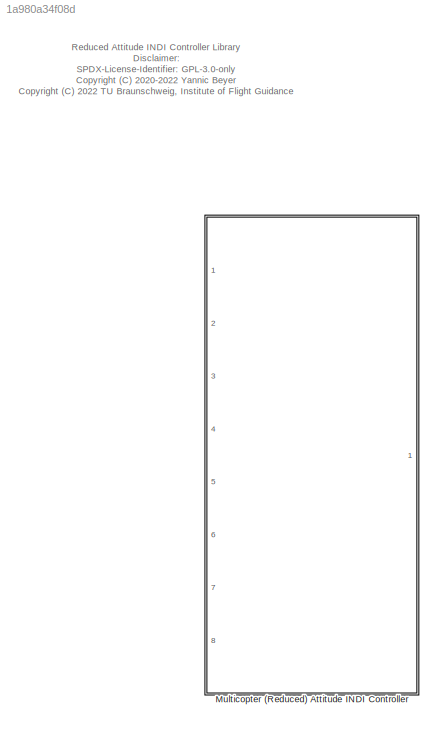
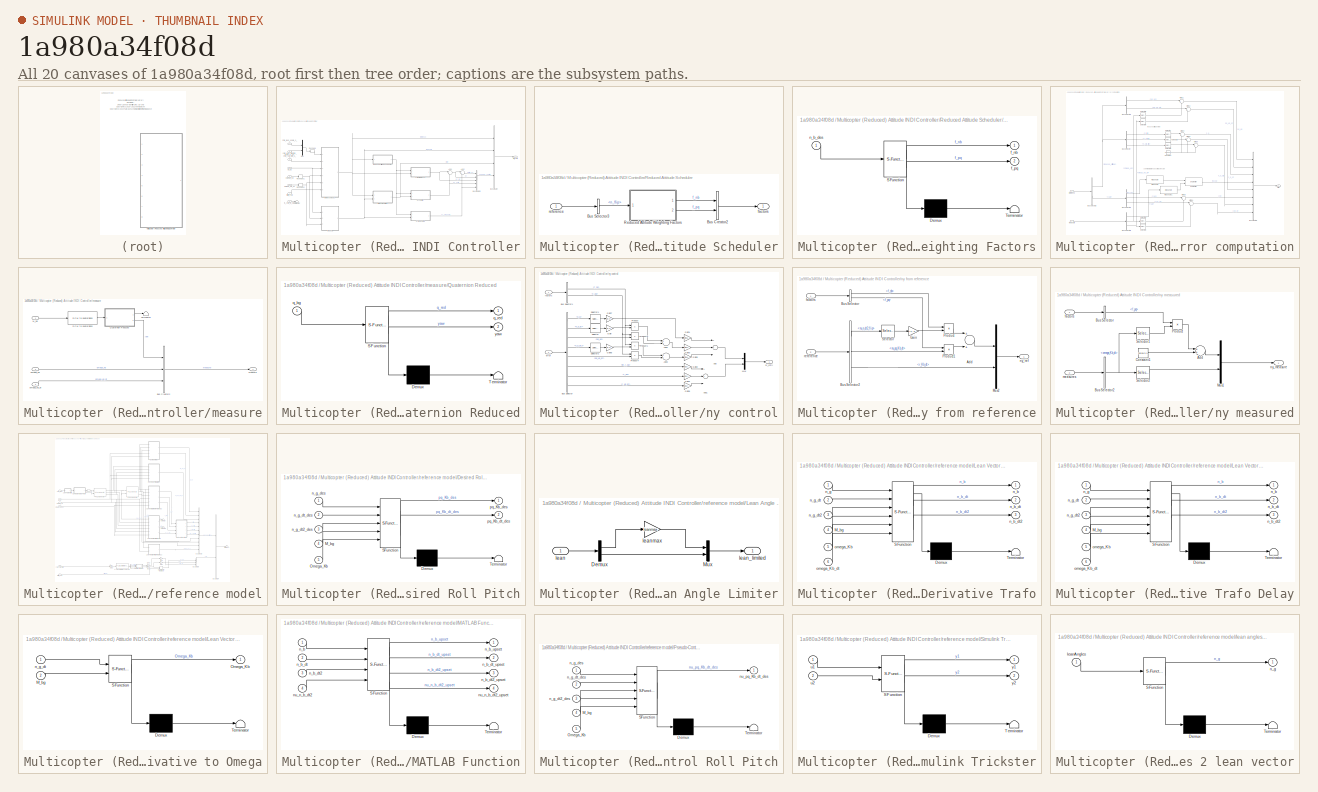
[diagram: thumbnail index - all 20 canvases of the model, root first then tree order]
MODEL slx_1a980a34f08d
KIND library
CONFIG AbsTol = auto
CONFIG EnableMultiTasking = off
CONFIG FixedStep = auto
CONFIG MaxStep = auto
CONFIG MinStep = auto
CONFIG RelTol = 1e-3
CONFIG SampleTimeConstraint = Unconstrained
CONFIG Solver = VariableStepAuto
CONFIG SolverName = VariableStepAuto
CONFIG StartTime = 0.0
CONFIG StopTime = 10.0
BLOCK [SubSystem] Multicopter (Reduced) Attitude INDI Controller
  Ports = [8, 1]
  RequestExecContextInheritance = off
BLOCK [Sum] Multicopter (Reduced) Attitude INDI Controller/Add1
  IconShape = round
  InputSameDT = off
  Inputs = |++
  OutDataTypeStr = Inherit: Inherit via internal rule
  Ports = [2, 1]
  SaturateOnIntegerOverflow = off
BLOCK [Sum] Multicopter (Reduced) Attitude INDI Controller/Add2
  IconShape = round
  InputSameDT = off
  Inputs = |+-
  OutDataTypeStr = Inherit: Inherit via internal rule
  Ports = [2, 1]
  SaturateOnIntegerOverflow = off
BLOCK [BusCreator] Multicopter (Reduced) Attitude INDI Controller/Bus Creator
  DisplayOption = bar
  InheritFromInputs = on
  Inputs = 4
  Ports = [4, 1]
BLOCK [BusCreator] Multicopter (Reduced) Attitude INDI Controller/Bus Creator1
  DisplayOption = bar
  InheritFromInputs = on
  Inputs = 5
  Ports = [5, 1]
BLOCK [Inport] Multicopter (Reduced) Attitude INDI Controller/M_bg
  IconDisplay = Port number
  Port = 4
BLOCK [Mux] Multicopter (Reduced) Attitude INDI Controller/Mux
  DisplayOption = bar
  Inputs = 2
  Ports = [2, 1]
BLOCK [SubSystem] Multicopter (Reduced) Attitude INDI Controller/Reduced Attitude Scheduler
  Ports = [1, 1]
  RequestExecContextInheritance = off
BLOCK [BusCreator] Multicopter (Reduced) Attitude INDI Controller/Reduced Attitude Scheduler/Bus Creator2
  DisplayOption = bar
  InheritFromInputs = on
  Inputs = 2
  Ports = [2, 1]
BLOCK [BusSelector] Multicopter (Reduced) Attitude INDI Controller/Reduced Attitude Scheduler/Bus Selector3
  OutputAsBus = off
  OutputSignals = reduced_attitude.n_flip
  Ports = [1, 1]
BLOCK [SubSystem] Multicopter (Reduced) Attitude INDI Controller/Reduced Attitude Scheduler/Reduced Attitude Weighting Factors
  ErrorFcn = Stateflow.Translate.translate
  PermitHierarchicalResolution = ExplicitOnly
  Ports = [1, 2]
  RequestExecContextInheritance = off
  SFBlockType = MATLAB Function
  TreatAsAtomicUnit = on
BLOCK [Demux] Multicopter (Reduced) Attitude INDI Controller/Reduced Attitude Scheduler/Reduced Attitude Weighting Factors/ Demux 
  Outputs = 1
  Ports = [1, 1]
BLOCK [S-Function] Multicopter (Reduced) Attitude INDI Controller/Reduced Attitude Scheduler/Reduced Attitude Weighting Factors/ SFunction 
  EnableBusSupport = off
  FunctionName = sf_sfun
  PortCounts = [1 3]
  Ports = [1, 3]
  SFcnIsStateOwnerBlock = off
  SFunctionDeploymentMode = off
  Tag = Stateflow S-Function cntrlAttiRedIndi_lib 8
BLOCK [Terminator] Multicopter (Reduced) Attitude INDI Controller/Reduced Attitude Scheduler/Reduced Attitude Weighting Factors/ Terminator 
BLOCK [Outport] Multicopter (Reduced) Attitude INDI Controller/Reduced Attitude Scheduler/Reduced Attitude Weighting Factors/f_nb
  IconDisplay = Port number
BLOCK [Outport] Multicopter (Reduced) Attitude INDI Controller/Reduced Attitude Scheduler/Reduced Attitude Weighting Factors/f_pq
  IconDisplay = Port number
  Port = 2
BLOCK [Inport] Multicopter (Reduced) Attitude INDI Controller/Reduced Attitude Scheduler/Reduced Attitude Weighting Factors/n_b_des
  IconDisplay = Port number
BLOCK [Outport] Multicopter (Reduced) Attitude INDI Controller/Reduced Attitude Scheduler/factors
  IconDisplay = Port number
BLOCK [Inport] Multicopter (Reduced) Attitude INDI Controller/Reduced Attitude Scheduler/reference
  IconDisplay = Port number
BLOCK [Reshape] Multicopter (Reduced) Attitude INDI Controller/Reshape
  OutputDimensionality = Column vector (2-D)
  Ports = [1, 1]
BLOCK [Reshape] Multicopter (Reduced) Attitude INDI Controller/Reshape1
  OutputDimensionality = Column vector (2-D)
  Ports = [1, 1]
BLOCK [Reshape] Multicopter (Reduced) Attitude INDI Controller/Reshape2
  OutputDimensionality = Column vector (2-D)
  Ports = [1, 1]
BLOCK [Terminator] Multicopter (Reduced) Attitude INDI Controller/Terminator
BLOCK [Outport] Multicopter (Reduced) Attitude INDI Controller/atti_cntrl
  IconDisplay = Port number
BLOCK [Inport] Multicopter (Reduced) Attitude INDI Controller/cmd_lean_angle_0_1
  IconDisplay = Port number
BLOCK [Inport] Multicopter (Reduced) Attitude INDI Controller/cmd_lean_direction_angle_0_2pi
  IconDisplay = Port number
  Port = 2
BLOCK [Inport] Multicopter (Reduced) Attitude INDI Controller/cmd_yaw_rate_-1_1
  IconDisplay = Port number
  Port = 3
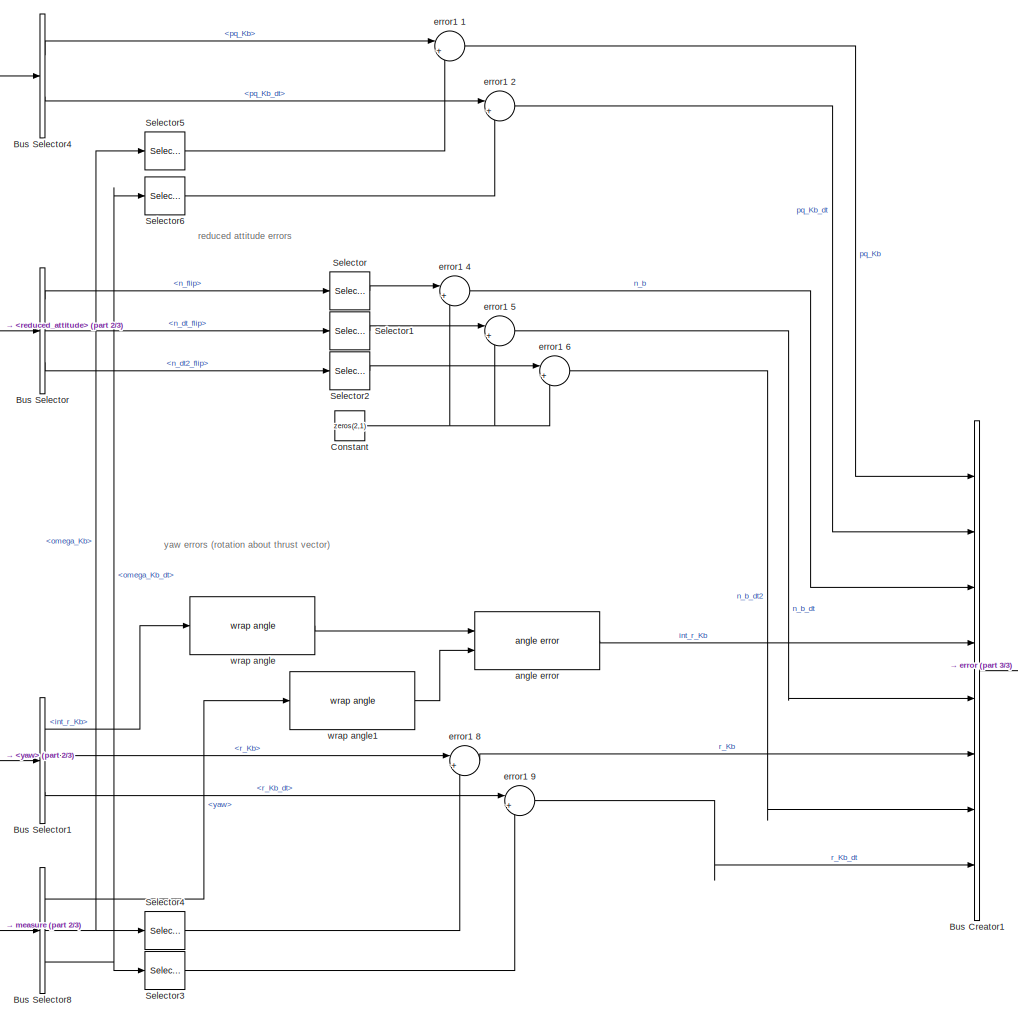
[diagram: Multicopter (Reduced) Attitude INDI Controller/error computation - part 1/3, center side, full height]
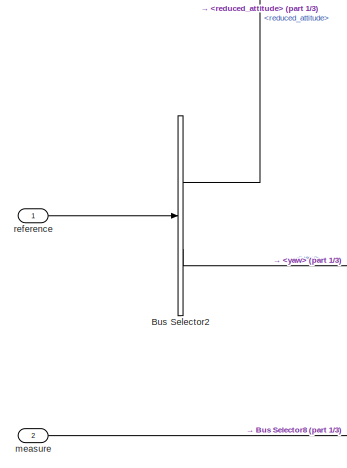
[diagram: Multicopter (Reduced) Attitude INDI Controller/error computation - part 2/3, bottom left region]
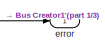
[diagram: Multicopter (Reduced) Attitude INDI Controller/error computation - part 3/3, middle right region]
BLOCK [SubSystem] Multicopter (Reduced) Attitude INDI Controller/error computation
  Ports = [2, 1]
  RequestExecContextInheritance = off
BLOCK [BusCreator] Multicopter (Reduced) Attitude INDI Controller/error computation/Bus Creator1
  DisplayOption = bar
  InheritFromInputs = on
  Inputs = 8
  Ports = [8, 1]
BLOCK [BusSelector] Multicopter (Reduced) Attitude INDI Controller/error computation/Bus Selector
  OutputAsBus = off
  OutputSignals = n_flip,n_dt_flip,n_dt2_flip
  Ports = [1, 3]
BLOCK [BusSelector] Multicopter (Reduced) Attitude INDI Controller/error computation/Bus Selector1
  OutputAsBus = off
  OutputSignals = int_r_Kb,r_Kb,r_Kb_dt
  Ports = [1, 3]
BLOCK [BusSelector] Multicopter (Reduced) Attitude INDI Controller/error computation/Bus Selector2
  OutputAsBus = off
  OutputSignals = reduced_attitude,yaw
  Ports = [1, 2]
BLOCK [BusSelector] Multicopter (Reduced) Attitude INDI Controller/error computation/Bus Selector4
  OutputAsBus = off
  OutputSignals = pq_Kb,pq_Kb_dt
  Ports = [1, 2]
BLOCK [BusSelector] Multicopter (Reduced) Attitude INDI Controller/error computation/Bus Selector8
  OutputAsBus = off
  OutputSignals = yaw,omega_Kb,omega_Kb_dt
  Ports = [1, 3]
BLOCK [Constant] Multicopter (Reduced) Attitude INDI Controller/error computation/Constant
  Value = zeros(2,1)
BLOCK [Selector] Multicopter (Reduced) Attitude INDI Controller/error computation/Selector
  IndexOptions = Index vector (dialog)
  Indices = [1,2]
  InputPortWidth = 3
  OutputSizes = 1
  Ports = [1, 1]
BLOCK [Selector] Multicopter (Reduced) Attitude INDI Controller/error computation/Selector1
  IndexOptions = Index vector (dialog)
  Indices = [1,2]
  InputPortWidth = 3
  OutputSizes = 1
  Ports = [1, 1]
BLOCK [Selector] Multicopter (Reduced) Attitude INDI Controller/error computation/Selector2
  IndexOptions = Index vector (dialog)
  Indices = [1,2]
  InputPortWidth = 3
  OutputSizes = 1
  Ports = [1, 1]
BLOCK [Selector] Multicopter (Reduced) Attitude INDI Controller/error computation/Selector3
  IndexOptions = Index vector (dialog)
  Indices = 3
  InputPortWidth = 3
  OutputSizes = 1
  Ports = [1, 1]
BLOCK [Selector] Multicopter (Reduced) Attitude INDI Controller/error computation/Selector4
  IndexOptions = Index vector (dialog)
  Indices = 3
  InputPortWidth = 3
  OutputSizes = 1
  Ports = [1, 1]
BLOCK [Selector] Multicopter (Reduced) Attitude INDI Controller/error computation/Selector5
  IndexOptions = Index vector (dialog)
  Indices = 1:2
  InputPortWidth = 3
  OutputSizes = 1
  Ports = [1, 1]
BLOCK [Selector] Multicopter (Reduced) Attitude INDI Controller/error computation/Selector6
  IndexOptions = Index vector (dialog)
  Indices = 1:2
  InputPortWidth = 3
  OutputSizes = 1
  Ports = [1, 1]
BLOCK [Reference] Multicopter (Reduced) Attitude INDI Controller/error computation/angle error  REF=angles_lib/angle error  (lib defined in slx_87bf087a0d78)
  Ports = [2, 1]
  SourceBlock = angles_lib/angle error
  SourceProductName = LADAC
  SourceType = SubSystem
BLOCK [Outport] Multicopter (Reduced) Attitude INDI Controller/error computation/error
  IconDisplay = Port number
BLOCK [Sum] Multicopter (Reduced) Attitude INDI Controller/error computation/error1 1
  IconShape = round
  InputSameDT = off
  Inputs = |+-
  OutDataTypeStr = Inherit: Inherit via internal rule
  Ports = [2, 1]
  SaturateOnIntegerOverflow = off
BLOCK [Sum] Multicopter (Reduced) Attitude INDI Controller/error computation/error1 2
  IconShape = round
  InputSameDT = off
  Inputs = |+-
  OutDataTypeStr = Inherit: Inherit via internal rule
  Ports = [2, 1]
  SaturateOnIntegerOverflow = off
BLOCK [Sum] Multicopter (Reduced) Attitude INDI Controller/error computation/error1 4
  IconShape = round
  InputSameDT = off
  Inputs = |+-
  OutDataTypeStr = Inherit: Inherit via internal rule
  Ports = [2, 1]
  SaturateOnIntegerOverflow = off
BLOCK [Sum] Multicopter (Reduced) Attitude INDI Controller/error computation/error1 5
  IconShape = round
  InputSameDT = off
  Inputs = |+-
  OutDataTypeStr = Inherit: Inherit via internal rule
  Ports = [2, 1]
  SaturateOnIntegerOverflow = off
BLOCK [Sum] Multicopter (Reduced) Attitude INDI Controller/error computation/error1 6
  IconShape = round
  InputSameDT = off
  Inputs = |+-
  OutDataTypeStr = Inherit: Inherit via internal rule
  Ports = [2, 1]
  SaturateOnIntegerOverflow = off
BLOCK [Sum] Multicopter (Reduced) Attitude INDI Controller/error computation/error1 8
  IconShape = round
  InputSameDT = off
  Inputs = |+-
  OutDataTypeStr = Inherit: Inherit via internal rule
  Ports = [2, 1]
  SaturateOnIntegerOverflow = off
BLOCK [Sum] Multicopter (Reduced) Attitude INDI Controller/error computation/error1 9
  IconShape = round
  InputSameDT = off
  Inputs = |+-
  OutDataTypeStr = Inherit: Inherit via internal rule
  Ports = [2, 1]
  SaturateOnIntegerOverflow = off
BLOCK [Inport] Multicopter (Reduced) Attitude INDI Controller/error computation/measure
  IconDisplay = Port number
  Port = 2
BLOCK [Inport] Multicopter (Reduced) Attitude INDI Controller/error computation/reference
  IconDisplay = Port number
BLOCK [Reference] Multicopter (Reduced) Attitude INDI Controller/error computation/wrap angle  REF=angles_lib/wrap angle  (lib defined in slx_87bf087a0d78)
  Ports = [1, 1]
  SourceBlock = angles_lib/wrap angle
  SourceProductName = LADAC
  SourceType = SubSystem
BLOCK [Reference] Multicopter (Reduced) Attitude INDI Controller/error computation/wrap angle1  REF=angles_lib/wrap angle  (lib defined in slx_87bf087a0d78)
  Ports = [1, 1]
  SourceBlock = angles_lib/wrap angle
  SourceProductName = LADAC
  SourceType = SubSystem
BLOCK [Inport] Multicopter (Reduced) Attitude INDI Controller/initial_yaw
  IconDisplay = Port number
  Port = 7
BLOCK [Inport] Multicopter (Reduced) Attitude INDI Controller/is_cmd_in_NED
  IconDisplay = Port number
  Port = 8
BLOCK [SubSystem] Multicopter (Reduced) Attitude INDI Controller/measure
  Ports = [3, 1]
  RequestExecContextInheritance = off
BLOCK [BusCreator] Multicopter (Reduced) Attitude INDI Controller/measure/Bus Creator2
  DisplayOption = bar
  InheritFromInputs = on
  Inputs = 3
  Ports = [3, 1]
BLOCK [Reference] Multicopter (Reduced) Attitude INDI Controller/measure/DCM to quaternions  REF=axes_transformation_lib/DCM to quaternions  (lib defined in slx_69e2413c78c0)
  Ports = [1, 1]
  SourceBlock = axes_transformation_lib/DCM to quaternions
  SourceProductName = LADAC
  SourceType = SubSystem
BLOCK [Inport] Multicopter (Reduced) Attitude INDI Controller/measure/M_bg
  IconDisplay = Port number
BLOCK [SubSystem] Multicopter (Reduced) Attitude INDI Controller/measure/Quaternion Reduced
  ErrorFcn = Stateflow.Translate.translate
  PermitHierarchicalResolution = ExplicitOnly
  Ports = [1, 2]
  RequestExecContextInheritance = off
  SFBlockType = MATLAB Function
  TreatAsAtomicUnit = on
BLOCK [Demux] Multicopter (Reduced) Attitude INDI Controller/measure/Quaternion Reduced/ Demux 
  Outputs = 1
  Ports = [1, 1]
BLOCK [S-Function] Multicopter (Reduced) Attitude INDI Controller/measure/Quaternion Reduced/ SFunction 
  EnableBusSupport = off
  FunctionName = sf_sfun
  PortCounts = [1 3]
  Ports = [1, 3]
  SFcnIsStateOwnerBlock = off
  SFunctionDeploymentMode = off
  Tag = Stateflow S-Function cntrlAttiRedIndi_lib 32
BLOCK [Terminator] Multicopter (Reduced) Attitude INDI Controller/measure/Quaternion Reduced/ Terminator 
BLOCK [Inport] Multicopter (Reduced) Attitude INDI Controller/measure/Quaternion Reduced/q_bg
  IconDisplay = Port number
BLOCK [Outport] Multicopter (Reduced) Attitude INDI Controller/measure/Quaternion Reduced/q_red
  IconDisplay = Port number
BLOCK [Outport] Multicopter (Reduced) Attitude INDI Controller/measure/Quaternion Reduced/yaw
  IconDisplay = Port number
  Port = 2
BLOCK [Terminator] Multicopter (Reduced) Attitude INDI Controller/measure/Terminator
BLOCK [Outport] Multicopter (Reduced) Attitude INDI Controller/measure/measure
  IconDisplay = Port number
BLOCK [Inport] Multicopter (Reduced) Attitude INDI Controller/measure/omega_Kb
  IconDisplay = Port number
  Port = 2
BLOCK [Inport] Multicopter (Reduced) Attitude INDI Controller/measure/omega_Kb_dt
  IconDisplay = Port number
  Port = 3
BLOCK [SubSystem] Multicopter (Reduced) Attitude INDI Controller/ny control
  Ports = [2, 1]
  RequestExecContextInheritance = off
BLOCK [Sum] Multicopter (Reduced) Attitude INDI Controller/ny control/Add
  InputSameDT = off
  Inputs = 3
  OutDataTypeStr = Inherit: Inherit via internal rule
  Ports = [3, 1]
  SaturateOnIntegerOverflow = off
BLOCK [Sum] Multicopter (Reduced) Attitude INDI Controller/ny control/Add1
  InputSameDT = off
  Inputs = 3
  OutDataTypeStr = Inherit: Inherit via internal rule
  Ports = [3, 1]
  SaturateOnIntegerOverflow = off
BLOCK [Sum] Multicopter (Reduced) Attitude INDI Controller/ny control/Add2
  InputSameDT = off
  OutDataTypeStr = Inherit: Inherit via internal rule
  Ports = [2, 1]
  SaturateOnIntegerOverflow = off
BLOCK [Sum] Multicopter (Reduced) Attitude INDI Controller/ny control/Add3
  InputSameDT = off
  OutDataTypeStr = Inherit: Inherit via internal rule
  Ports = [2, 1]
  SaturateOnIntegerOverflow = off
BLOCK [BusSelector] Multicopter (Reduced) Attitude INDI Controller/ny control/Bus Selector
  OutputAsBus = off
  OutputSignals = n_b,n_b_dt,pq_Kb,n_b_dt2,pq_Kb_dt,int_r_Kb,r_Kb,r_Kb_dt
  Ports = [1, 8]
BLOCK [BusSelector] Multicopter (Reduced) Attitude INDI Controller/ny control/Bus Selector1
  OutputAsBus = off
  OutputSignals = f_nb,f_pq
  Ports = [1, 2]
BLOCK [Gain] Multicopter (Reduced) Attitude INDI Controller/ny control/Gain
  Gain = [1;-1]
  OutDataTypeStr = Inherit: Inherit via internal rule
  ParamDataTypeStr = Inherit: Inherit via internal rule
  SaturateOnIntegerOverflow = off
BLOCK [Gain] Multicopter (Reduced) Attitude INDI Controller/ny control/Gain1
  Gain = atc.k.lean
  OutDataTypeStr = Inherit: Inherit via internal rule
  ParamDataTypeStr = Inherit: Inherit via internal rule
  SaturateOnIntegerOverflow = off
BLOCK [Gain] Multicopter (Reduced) Attitude INDI Controller/ny control/Gain2
  Gain = atc.k.yaw
  OutDataTypeStr = Inherit: Inherit via internal rule
  ParamDataTypeStr = Inherit: Inherit via internal rule
  SaturateOnIntegerOverflow = off
BLOCK [Gain] Multicopter (Reduced) Attitude INDI Controller/ny control/Gain3
  Gain = atc.k.leanrate
  OutDataTypeStr = Inherit: Inherit via internal rule
  ParamDataTypeStr = Inherit: Inherit via internal rule
  SaturateOnIntegerOverflow = off
BLOCK [Gain] Multicopter (Reduced) Attitude INDI Controller/ny control/Gain4
  Gain = atc.k.yawrate
  OutDataTypeStr = Inherit: Inherit via internal rule
  ParamDataTypeStr = Inherit: Inherit via internal rule
  SaturateOnIntegerOverflow = off
BLOCK [Gain] Multicopter (Reduced) Attitude INDI Controller/ny control/Gain5
  Gain = atc.k.leanacc
  OutDataTypeStr = Inherit: Inherit via internal rule
  ParamDataTypeStr = Inherit: Inherit via internal rule
  SaturateOnIntegerOverflow = off
BLOCK [Gain] Multicopter (Reduced) Attitude INDI Controller/ny control/Gain6
  Gain = atc.k.yawacc
  OutDataTypeStr = Inherit: Inherit via internal rule
  ParamDataTypeStr = Inherit: Inherit via internal rule
  SaturateOnIntegerOverflow = off
BLOCK [Gain] Multicopter (Reduced) Attitude INDI Controller/ny control/Gain7
  Gain = [1;-1]
  OutDataTypeStr = Inherit: Inherit via internal rule
  ParamDataTypeStr = Inherit: Inherit via internal rule
  SaturateOnIntegerOverflow = off
BLOCK [Gain] Multicopter (Reduced) Attitude INDI Controller/ny control/Gain8
  Gain = [1;-1]
  OutDataTypeStr = Inherit: Inherit via internal rule
  ParamDataTypeStr = Inherit: Inherit via internal rule
  SaturateOnIntegerOverflow = off
BLOCK [Mux] Multicopter (Reduced) Attitude INDI Controller/ny control/Mux
  DisplayOption = bar
  Inputs = 2
  Ports = [2, 1]
BLOCK [Product] Multicopter (Reduced) Attitude INDI Controller/ny control/Product
  InputSameDT = off
  OutDataTypeStr = Inherit: Inherit via internal rule
  Ports = [2, 1]
  RndMeth = Floor
  SaturateOnIntegerOverflow = off
BLOCK [Product] Multicopter (Reduced) Attitude INDI Controller/ny control/Product1
  InputSameDT = off
  OutDataTypeStr = Inherit: Inherit via internal rule
  Ports = [2, 1]
  RndMeth = Floor
  SaturateOnIntegerOverflow = off
BLOCK [Product] Multicopter (Reduced) Attitude INDI Controller/ny control/Product3
  InputSameDT = off
  OutDataTypeStr = Inherit: Inherit via internal rule
  Ports = [2, 1]
  RndMeth = Floor
  SaturateOnIntegerOverflow = off
BLOCK [Product] Multicopter (Reduced) Attitude INDI Controller/ny control/Product4
  InputSameDT = off
  OutDataTypeStr = Inherit: Inherit via internal rule
  Ports = [2, 1]
  RndMeth = Floor
  SaturateOnIntegerOverflow = off
BLOCK [Selector] Multicopter (Reduced) Attitude INDI Controller/ny control/Selector
  IndexOptions = Index vector (dialog)
  Indices = [2,1]
  InputPortWidth = 2
  OutputSizes = 1
  Ports = [1, 1]
BLOCK [Selector] Multicopter (Reduced) Attitude INDI Controller/ny control/Selector1
  IndexOptions = Index vector (dialog)
  Indices = [2,1]
  InputPortWidth = 2
  OutputSizes = 1
  Ports = [1, 1]
BLOCK [Selector] Multicopter (Reduced) Attitude INDI Controller/ny control/Selector2
  IndexOptions = Index vector (dialog)
  Indices = [2,1]
  InputPortWidth = 2
  OutputSizes = 1
  Ports = [1, 1]
BLOCK [Inport] Multicopter (Reduced) Attitude INDI Controller/ny control/error
  IconDisplay = Port number
  Port = 2
BLOCK [Inport] Multicopter (Reduced) Attitude INDI Controller/ny control/factors
  IconDisplay = Port number
BLOCK [Outport] Multicopter (Reduced) Attitude INDI Controller/ny control/ny_cntrl
  IconDisplay = Port number
BLOCK [SubSystem] Multicopter (Reduced) Attitude INDI Controller/ny from reference
  Ports = [2, 1]
  RequestExecContextInheritance = off
BLOCK [Sum] Multicopter (Reduced) Attitude INDI Controller/ny from reference/Add
  InputSameDT = off
  OutDataTypeStr = Inherit: Inherit via internal rule
  Ports = [2, 1]
  SaturateOnIntegerOverflow = off
BLOCK [BusSelector] Multicopter (Reduced) Attitude INDI Controller/ny from reference/Bus Selector
  OutputAsBus = off
  OutputSignals = f_nb,f_pq
  Ports = [1, 2]
BLOCK [BusSelector] Multicopter (Reduced) Attitude INDI Controller/ny from reference/Bus Selector2
  OutputAsBus = off
  OutputSignals = reduced_attitude.nu_n_dt2_flip,reduced_attitude.nu_pq_Kb_dt,yaw.r_Kb_dt
  Ports = [1, 3]
BLOCK [Gain] Multicopter (Reduced) Attitude INDI Controller/ny from reference/Gain
  Gain = [1;-1]
  OutDataTypeStr = Inherit: Inherit via internal rule
  ParamDataTypeStr = Inherit: Inherit via internal rule
  SaturateOnIntegerOverflow = off
BLOCK [Mux] Multicopter (Reduced) Attitude INDI Controller/ny from reference/Mux2
  DisplayOption = bar
  Inputs = 2
  Ports = [2, 1]
BLOCK [Product] Multicopter (Reduced) Attitude INDI Controller/ny from reference/Product
  InputSameDT = off
  OutDataTypeStr = Inherit: Inherit via internal rule
  Ports = [2, 1]
  RndMeth = Floor
  SaturateOnIntegerOverflow = off
BLOCK [Product] Multicopter (Reduced) Attitude INDI Controller/ny from reference/Product1
  InputSameDT = off
  OutDataTypeStr = Inherit: Inherit via internal rule
  Ports = [2, 1]
  RndMeth = Floor
  SaturateOnIntegerOverflow = off
BLOCK [Selector] Multicopter (Reduced) Attitude INDI Controller/ny from reference/Selector
  IndexOptions = Index vector (dialog)
  Indices = [2,1]
  InputPortWidth = 3
  OutputSizes = 1
  Ports = [1, 1]
BLOCK [Inport] Multicopter (Reduced) Attitude INDI Controller/ny from reference/factors
  IconDisplay = Port number
BLOCK [Outport] Multicopter (Reduced) Attitude INDI Controller/ny from reference/ny_ref
  IconDisplay = Port number
BLOCK [Inport] Multicopter (Reduced) Attitude INDI Controller/ny from reference/reference
  IconDisplay = Port number
  Port = 2
BLOCK [SubSystem] Multicopter (Reduced) Attitude INDI Controller/ny measured
  Ports = [2, 1]
  RequestExecContextInheritance = off
BLOCK [Sum] Multicopter (Reduced) Attitude INDI Controller/ny measured/Add
  InputSameDT = off
  OutDataTypeStr = Inherit: Inherit via internal rule
  Ports = [2, 1]
  SaturateOnIntegerOverflow = off
BLOCK [BusSelector] Multicopter (Reduced) Attitude INDI Controller/ny measured/Bus Selector
  OutputAsBus = off
  OutputSignals = f_pq
  Ports = [1, 1]
BLOCK [BusSelector] Multicopter (Reduced) Attitude INDI Controller/ny measured/Bus Selector2
  OutputAsBus = off
  OutputSignals = omega_Kb_dt
  Ports = [1, 1]
BLOCK [Constant] Multicopter (Reduced) Attitude INDI Controller/ny measured/Constant1
  Value = zeros(2,1)
BLOCK [Mux] Multicopter (Reduced) Attitude INDI Controller/ny measured/Mux1
  DisplayOption = bar
  Inputs = 2
  Ports = [2, 1]
BLOCK [Product] Multicopter (Reduced) Attitude INDI Controller/ny measured/Product
  InputSameDT = off
  OutDataTypeStr = Inherit: Inherit via internal rule
  Ports = [2, 1]
  RndMeth = Floor
  SaturateOnIntegerOverflow = off
BLOCK [Selector] Multicopter (Reduced) Attitude INDI Controller/ny measured/Selector1
  IndexOptions = Index vector (dialog)
  Indices = 1:2
  InputPortWidth = 3
  OutputSizes = 1
  Ports = [1, 1]
BLOCK [Selector] Multicopter (Reduced) Attitude INDI Controller/ny measured/Selector2
  IndexOptions = Index vector (dialog)
  Indices = 3
  InputPortWidth = 3
  OutputSizes = 1
  Ports = [1, 1]
BLOCK [Inport] Multicopter (Reduced) Attitude INDI Controller/ny measured/factors
  IconDisplay = Port number
BLOCK [Inport] Multicopter (Reduced) Attitude INDI Controller/ny measured/measures
  IconDisplay = Port number
  Port = 2
BLOCK [Outport] Multicopter (Reduced) Attitude INDI Controller/ny measured/ny_measure
  IconDisplay = Port number
BLOCK [Inport] Multicopter (Reduced) Attitude INDI Controller/omega_Kb
  IconDisplay = Port number
  Port = 5
BLOCK [Inport] Multicopter (Reduced) Attitude INDI Controller/omega_Kb_dt
  IconDisplay = Port number
  Port = 6
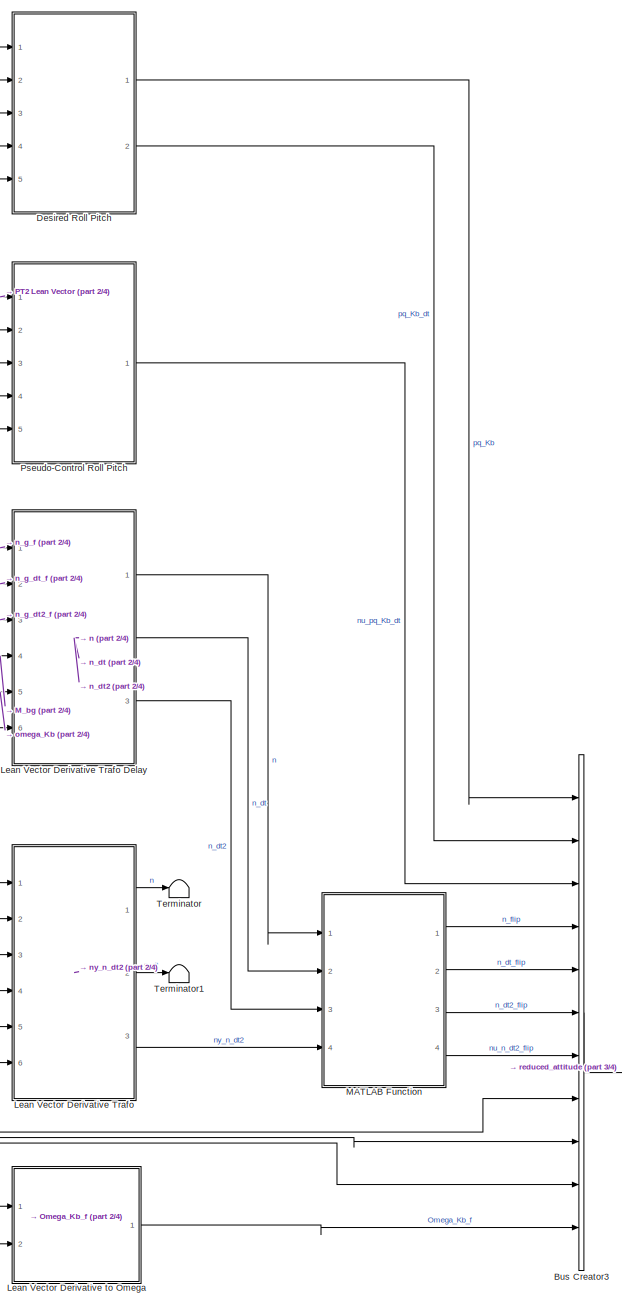
[diagram: Multicopter (Reduced) Attitude INDI Controller/reference model - part 1/4, right side, full height]
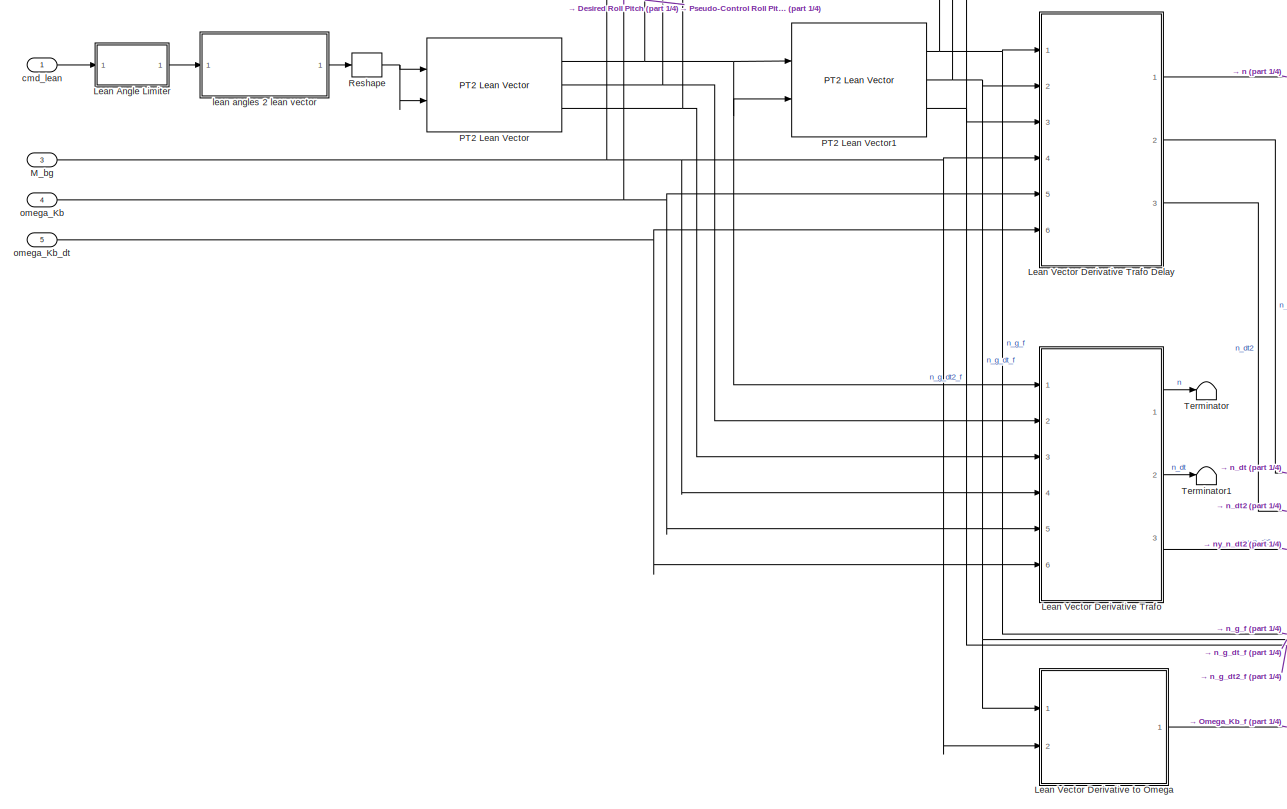
[diagram: Multicopter (Reduced) Attitude INDI Controller/reference model - part 2/4, middle left region]
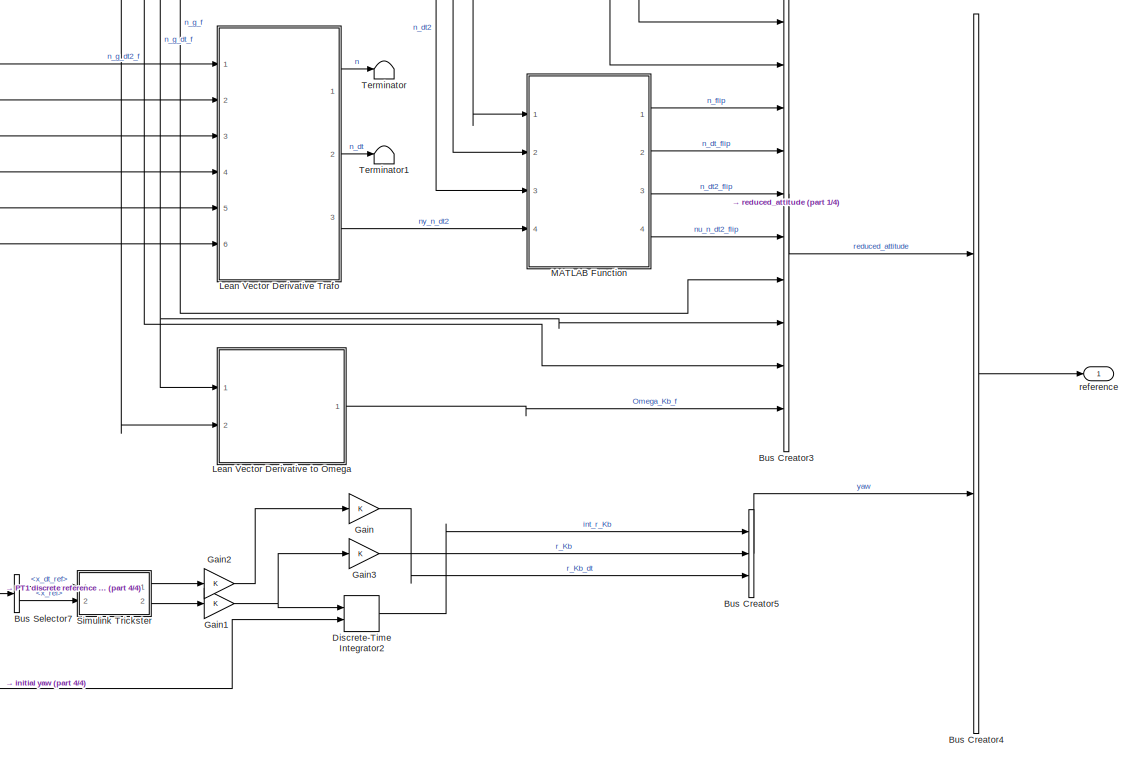
[diagram: Multicopter (Reduced) Attitude INDI Controller/reference model - part 3/4, bottom right region]
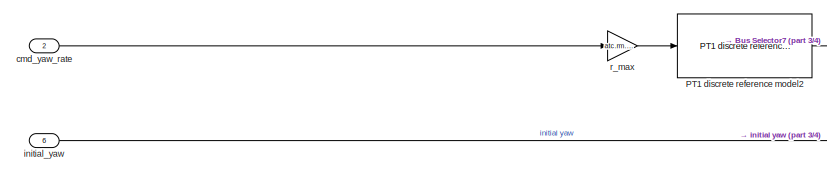
[diagram: Multicopter (Reduced) Attitude INDI Controller/reference model - part 4/4, bottom left region]
BLOCK [SubSystem] Multicopter (Reduced) Attitude INDI Controller/reference model
  Ports = [6, 1]
  RequestExecContextInheritance = off
BLOCK [BusCreator] Multicopter (Reduced) Attitude INDI Controller/reference model/Bus Creator3
  DisplayOption = bar
  InheritFromInputs = on
  Inputs = 11
  Ports = [11, 1]
BLOCK [BusCreator] Multicopter (Reduced) Attitude INDI Controller/reference model/Bus Creator4
  DisplayOption = bar
  InheritFromInputs = on
  Inputs = 2
  Ports = [2, 1]
BLOCK [BusCreator] Multicopter (Reduced) Attitude INDI Controller/reference model/Bus Creator5
  DisplayOption = bar
  InheritFromInputs = on
  Inputs = 3
  Ports = [3, 1]
BLOCK [BusSelector] Multicopter (Reduced) Attitude INDI Controller/reference model/Bus Selector7
  OutputAsBus = off
  OutputSignals = x_dt_ref,x_ref
  Ports = [1, 2]
BLOCK [SubSystem] Multicopter (Reduced) Attitude INDI Controller/reference model/Desired Roll Pitch
  ErrorFcn = Stateflow.Translate.translate
  PermitHierarchicalResolution = ExplicitOnly
  Ports = [5, 2]
  RequestExecContextInheritance = off
  SFBlockType = MATLAB Function
  TreatAsAtomicUnit = on
BLOCK [Demux] Multicopter (Reduced) Attitude INDI Controller/reference model/Desired Roll Pitch/ Demux 
  Outputs = 1
  Ports = [1, 1]
BLOCK [S-Function] Multicopter (Reduced) Attitude INDI Controller/reference model/Desired Roll Pitch/ SFunction 
  EnableBusSupport = on
  FunctionName = sf_sfun
  PortCounts = [5 3]
  Ports = [5, 3]
  SFcnIsStateOwnerBlock = off
  SFunctionDeploymentMode = off
  Tag = Stateflow S-Function cntrlAttiRedIndi_lib 44
BLOCK [Terminator] Multicopter (Reduced) Attitude INDI Controller/reference model/Desired Roll Pitch/ Terminator 
BLOCK [Inport] Multicopter (Reduced) Attitude INDI Controller/reference model/Desired Roll Pitch/M_bg
  IconDisplay = Port number
  Port = 4
BLOCK [Inport] Multicopter (Reduced) Attitude INDI Controller/reference model/Desired Roll Pitch/Omega_Kb
  IconDisplay = Port number
  Port = 5
BLOCK [Inport] Multicopter (Reduced) Attitude INDI Controller/reference model/Desired Roll Pitch/n_g_des
  IconDisplay = Port number
BLOCK [Inport] Multicopter (Reduced) Attitude INDI Controller/reference model/Desired Roll Pitch/n_g_dt2_des
  IconDisplay = Port number
  Port = 3
BLOCK [Inport] Multicopter (Reduced) Attitude INDI Controller/reference model/Desired Roll Pitch/n_g_dt_des
  IconDisplay = Port number
  Port = 2
BLOCK [Outport] Multicopter (Reduced) Attitude INDI Controller/reference model/Desired Roll Pitch/pq_Kb_des
  IconDisplay = Port number
BLOCK [Outport] Multicopter (Reduced) Attitude INDI Controller/reference model/Desired Roll Pitch/pq_Kb_dt_des
  IconDisplay = Port number
  Port = 2
BLOCK [DiscreteIntegrator] Multicopter (Reduced) Attitude INDI Controller/reference model/Discrete-Time Integrator2
  ICPrevOutput = DiscIntNeverNeededParam
  ICPrevScaledInput = DiscIntNeverNeededParam
  InitialConditionSetting = Auto
  InitialConditionSource = external
  Ports = [2, 1]
  SampleTime = -1
BLOCK [Gain] Multicopter (Reduced) Attitude INDI Controller/reference model/Gain
  Multiplication = Matrix(K*u)
  OutDataTypeStr = Inherit: Inherit via internal rule
  ParamDataTypeStr = Inherit: Inherit via internal rule
  SaturateOnIntegerOverflow = off
BLOCK [Gain] Multicopter (Reduced) Attitude INDI Controller/reference model/Gain1
  OutDataTypeStr = Inherit: Inherit via internal rule
  ParamDataTypeStr = Inherit: Inherit via internal rule
  SaturateOnIntegerOverflow = off
BLOCK [Gain] Multicopter (Reduced) Attitude INDI Controller/reference model/Gain2
  OutDataTypeStr = Inherit: Inherit via internal rule
  ParamDataTypeStr = Inherit: Inherit via internal rule
  SaturateOnIntegerOverflow = off
BLOCK [Gain] Multicopter (Reduced) Attitude INDI Controller/reference model/Gain3
  Multiplication = Matrix(K*u)
  OutDataTypeStr = Inherit: Inherit via internal rule
  ParamDataTypeStr = Inherit: Inherit via internal rule
  SaturateOnIntegerOverflow = off
BLOCK [SubSystem] Multicopter (Reduced) Attitude INDI Controller/reference model/Lean Angle Limiter
  Ports = [1, 1]
  RequestExecContextInheritance = off
BLOCK [Demux] Multicopter (Reduced) Attitude INDI Controller/reference model/Lean Angle Limiter/Demux
  DisplayOption = bar
  Outputs = 2
  Ports = [1, 2]
BLOCK [Mux] Multicopter (Reduced) Attitude INDI Controller/reference model/Lean Angle Limiter/Mux
  DisplayOption = bar
  Inputs = 2
  Ports = [2, 1]
BLOCK [Inport] Multicopter (Reduced) Attitude INDI Controller/reference model/Lean Angle Limiter/lean
  IconDisplay = Port number
BLOCK [Outport] Multicopter (Reduced) Attitude INDI Controller/reference model/Lean Angle Limiter/lean_limited
  IconDisplay = Port number
BLOCK [Gain] Multicopter (Reduced) Attitude INDI Controller/reference model/Lean Angle Limiter/leanmax
  Gain = leanmax
  OutDataTypeStr = Inherit: Inherit via internal rule
  ParamDataTypeStr = Inherit: Inherit via internal rule
  SaturateOnIntegerOverflow = off
BLOCK [SubSystem] Multicopter (Reduced) Attitude INDI Controller/reference model/Lean Vector Derivative Trafo
  ErrorFcn = Stateflow.Translate.translate
  PermitHierarchicalResolution = ExplicitOnly
  Ports = [6, 3]
  RequestExecContextInheritance = off
  SFBlockType = MATLAB Function
  TreatAsAtomicUnit = on
BLOCK [SubSystem] Multicopter (Reduced) Attitude INDI Controller/reference model/Lean Vector Derivative Trafo Delay
  ErrorFcn = Stateflow.Translate.translate
  PermitHierarchicalResolution = ExplicitOnly
  Ports = [6, 3]
  RequestExecContextInheritance = off
  SFBlockType = MATLAB Function
  TreatAsAtomicUnit = on
BLOCK [Demux] Multicopter (Reduced) Attitude INDI Controller/reference model/Lean Vector Derivative Trafo Delay/ Demux 
  Outputs = 1
  Ports = [1, 1]
BLOCK [S-Function] Multicopter (Reduced) Attitude INDI Controller/reference model/Lean Vector Derivative Trafo Delay/ SFunction 
  EnableBusSupport = off
  FunctionName = sf_sfun
  PortCounts = [6 4]
  Ports = [6, 4]
  SFcnIsStateOwnerBlock = off
  SFunctionDeploymentMode = off
  Tag = Stateflow S-Function cntrlAttiRedIndi_lib 1
BLOCK [Terminator] Multicopter (Reduced) Attitude INDI Controller/reference model/Lean Vector Derivative Trafo Delay/ Terminator 
BLOCK [Inport] Multicopter (Reduced) Attitude INDI Controller/reference model/Lean Vector Derivative Trafo Delay/M_bg
  IconDisplay = Port number
  Port = 4
BLOCK [Outport] Multicopter (Reduced) Attitude INDI Controller/reference model/Lean Vector Derivative Trafo Delay/n_b
  IconDisplay = Port number
BLOCK [Outport] Multicopter (Reduced) Attitude INDI Controller/reference model/Lean Vector Derivative Trafo Delay/n_b_dt
  IconDisplay = Port number
  Port = 2
BLOCK [Outport] Multicopter (Reduced) Attitude INDI Controller/reference model/Lean Vector Derivative Trafo Delay/n_b_dt2
  IconDisplay = Port number
  Port = 3
BLOCK [Inport] Multicopter (Reduced) Attitude INDI Controller/reference model/Lean Vector Derivative Trafo Delay/n_g
  IconDisplay = Port number
BLOCK [Inport] Multicopter (Reduced) Attitude INDI Controller/reference model/Lean Vector Derivative Trafo Delay/n_g_dt
  IconDisplay = Port number
  Port = 2
BLOCK [Inport] Multicopter (Reduced) Attitude INDI Controller/reference model/Lean Vector Derivative Trafo Delay/n_g_dt2
  IconDisplay = Port number
  Port = 3
BLOCK [Inport] Multicopter (Reduced) Attitude INDI Controller/reference model/Lean Vector Derivative Trafo Delay/omega_Kb
  IconDisplay = Port number
  Port = 5
BLOCK [Inport] Multicopter (Reduced) Attitude INDI Controller/reference model/Lean Vector Derivative Trafo Delay/omega_Kb_dt
  IconDisplay = Port number
  Port = 6
BLOCK [Demux] Multicopter (Reduced) Attitude INDI Controller/reference model/Lean Vector Derivative Trafo/ Demux 
  Outputs = 1
  Ports = [1, 1]
BLOCK [S-Function] Multicopter (Reduced) Attitude INDI Controller/reference model/Lean Vector Derivative Trafo/ SFunction 
  EnableBusSupport = off
  FunctionName = sf_sfun
  PortCounts = [6 4]
  Ports = [6, 4]
  SFcnIsStateOwnerBlock = off
  SFunctionDeploymentMode = off
  Tag = Stateflow S-Function cntrlAttiRedIndi_lib 4
BLOCK [Terminator] Multicopter (Reduced) Attitude INDI Controller/reference model/Lean Vector Derivative Trafo/ Terminator 
BLOCK [Inport] Multicopter (Reduced) Attitude INDI Controller/reference model/Lean Vector Derivative Trafo/M_bg
  IconDisplay = Port number
  Port = 4
BLOCK [Outport] Multicopter (Reduced) Attitude INDI Controller/reference model/Lean Vector Derivative Trafo/n_b
  IconDisplay = Port number
BLOCK [Outport] Multicopter (Reduced) Attitude INDI Controller/reference model/Lean Vector Derivative Trafo/n_b_dt
  IconDisplay = Port number
  Port = 2
BLOCK [Outport] Multicopter (Reduced) Attitude INDI Controller/reference model/Lean Vector Derivative Trafo/n_b_dt2
  IconDisplay = Port number
  Port = 3
BLOCK [Inport] Multicopter (Reduced) Attitude INDI Controller/reference model/Lean Vector Derivative Trafo/n_g
  IconDisplay = Port number
BLOCK [Inport] Multicopter (Reduced) Attitude INDI Controller/reference model/Lean Vector Derivative Trafo/n_g_dt
  IconDisplay = Port number
  Port = 2
BLOCK [Inport] Multicopter (Reduced) Attitude INDI Controller/reference model/Lean Vector Derivative Trafo/n_g_dt2
  IconDisplay = Port number
  Port = 3
BLOCK [Inport] Multicopter (Reduced) Attitude INDI Controller/reference model/Lean Vector Derivative Trafo/omega_Kb
  IconDisplay = Port number
  Port = 5
BLOCK [Inport] Multicopter (Reduced) Attitude INDI Controller/reference model/Lean Vector Derivative Trafo/omega_Kb_dt
  IconDisplay = Port number
  Port = 6
BLOCK [SubSystem] Multicopter (Reduced) Attitude INDI Controller/reference model/Lean Vector Derivative to Omega
  ErrorFcn = Stateflow.Translate.translate
  PermitHierarchicalResolution = ExplicitOnly
  Ports = [2, 1]
  RequestExecContextInheritance = off
  SFBlockType = MATLAB Function
  TreatAsAtomicUnit = on
BLOCK [Demux] Multicopter (Reduced) Attitude INDI Controller/reference model/Lean Vector Derivative to Omega/ Demux 
  Outputs = 1
  Ports = [1, 1]
BLOCK [S-Function] Multicopter (Reduced) Attitude INDI Controller/reference model/Lean Vector Derivative to Omega/ SFunction 
  EnableBusSupport = off
  FunctionName = sf_sfun
  PortCounts = [2 2]
  Ports = [2, 2]
  SFcnIsStateOwnerBlock = off
  SFunctionDeploymentMode = off
  Tag = Stateflow S-Function cntrlAttiRedIndi_lib 13
BLOCK [Terminator] Multicopter (Reduced) Attitude INDI Controller/reference model/Lean Vector Derivative to Omega/ Terminator 
BLOCK [Inport] Multicopter (Reduced) Attitude INDI Controller/reference model/Lean Vector Derivative to Omega/M_bg
  IconDisplay = Port number
  Port = 2
BLOCK [Outport] Multicopter (Reduced) Attitude INDI Controller/reference model/Lean Vector Derivative to Omega/Omega_Kb
  IconDisplay = Port number
BLOCK [Inport] Multicopter (Reduced) Attitude INDI Controller/reference model/Lean Vector Derivative to Omega/n_g_dt
  IconDisplay = Port number
BLOCK [SubSystem] Multicopter (Reduced) Attitude INDI Controller/reference model/MATLAB Function
  ErrorFcn = Stateflow.Translate.translate
  PermitHierarchicalResolution = ExplicitOnly
  Ports = [4, 4]
  RequestExecContextInheritance = off
  SFBlockType = MATLAB Function
  TreatAsAtomicUnit = on
BLOCK [Demux] Multicopter (Reduced) Attitude INDI Controller/reference model/MATLAB Function/ Demux 
  Outputs = 1
  Ports = [1, 1]
BLOCK [S-Function] Multicopter (Reduced) Attitude INDI Controller/reference model/MATLAB Function/ SFunction 
  EnableBusSupport = off
  FunctionName = sf_sfun
  PortCounts = [4 5]
  Ports = [4, 5]
  SFcnIsStateOwnerBlock = off
  SFunctionDeploymentMode = off
  Tag = Stateflow S-Function cntrlAttiRedIndi_lib 2
BLOCK [Terminator] Multicopter (Reduced) Attitude INDI Controller/reference model/MATLAB Function/ Terminator 
BLOCK [Inport] Multicopter (Reduced) Attitude INDI Controller/reference model/MATLAB Function/n_b
  IconDisplay = Port number
BLOCK [Inport] Multicopter (Reduced) Attitude INDI Controller/reference model/MATLAB Function/n_b_dt
  IconDisplay = Port number
  Port = 2
BLOCK [Inport] Multicopter (Reduced) Attitude INDI Controller/reference model/MATLAB Function/n_b_dt2
  IconDisplay = Port number
  Port = 3
BLOCK [Outport] Multicopter (Reduced) Attitude INDI Controller/reference model/MATLAB Function/n_b_dt2_upset
  IconDisplay = Port number
  Port = 3
BLOCK [Outport] Multicopter (Reduced) Attitude INDI Controller/reference model/MATLAB Function/n_b_dt_upset
  IconDisplay = Port number
  Port = 2
BLOCK [Outport] Multicopter (Reduced) Attitude INDI Controller/reference model/MATLAB Function/n_b_upset
  IconDisplay = Port number
BLOCK [Inport] Multicopter (Reduced) Attitude INDI Controller/reference model/MATLAB Function/nu_n_b_dt2
  IconDisplay = Port number
  Port = 4
BLOCK [Outport] Multicopter (Reduced) Attitude INDI Controller/reference model/MATLAB Function/nu_n_b_dt2_upset
  IconDisplay = Port number
  Port = 4
BLOCK [Inport] Multicopter (Reduced) Attitude INDI Controller/reference model/M_bg
  IconDisplay = Port number
  Port = 3
BLOCK [Reference] Multicopter (Reduced) Attitude INDI Controller/reference model/PT1 discrete reference model2  REF=ndi_lib/PT1 discrete reference model  (lib defined in slx_72fedfba3911)
  Ports = [1, 1]
  SourceBlock = ndi_lib/PT1 discrete reference model
  SourceProductName = LADAC
BLOCK [Reference] Multicopter (Reduced) Attitude INDI Controller/reference model/PT2 Lean Vector  REF=filters_lib/PT2 Lean Vector  (lib defined in slx_a584fcc4ebc5)
  Ports = [2, 3]
  SourceBlock = filters_lib/PT2 Lean Vector
  SourceProductName = LADAC
  SourceType = 2nd Order Reduced Attitude Reference Model
BLOCK [Reference] Multicopter (Reduced) Attitude INDI Controller/reference model/PT2 Lean Vector1  REF=filters_lib/PT2 Lean Vector  (lib defined in slx_a584fcc4ebc5)
  Ports = [2, 3]
  SourceBlock = filters_lib/PT2 Lean Vector
  SourceProductName = LADAC
  SourceType = 2nd Order Reduced Attitude Reference Model
BLOCK [SubSystem] Multicopter (Reduced) Attitude INDI Controller/reference model/Pseudo-Control Roll Pitch
  ErrorFcn = Stateflow.Translate.translate
  PermitHierarchicalResolution = ExplicitOnly
  Ports = [5, 1]
  RequestExecContextInheritance = off
  SFBlockType = MATLAB Function
  TreatAsAtomicUnit = on
BLOCK [Demux] Multicopter (Reduced) Attitude INDI Controller/reference model/Pseudo-Control Roll Pitch/ Demux 
  Outputs = 1
  Ports = [1, 1]
BLOCK [S-Function] Multicopter (Reduced) Attitude INDI Controller/reference model/Pseudo-Control Roll Pitch/ SFunction 
  EnableBusSupport = off
  FunctionName = sf_sfun
  PortCounts = [5 2]
  Ports = [5, 2]
  SFcnIsStateOwnerBlock = off
  SFunctionDeploymentMode = off
  Tag = Stateflow S-Function cntrlAttiRedIndi_lib 6
BLOCK [Terminator] Multicopter (Reduced) Attitude INDI Controller/reference model/Pseudo-Control Roll Pitch/ Terminator 
BLOCK [Inport] Multicopter (Reduced) Attitude INDI Controller/reference model/Pseudo-Control Roll Pitch/M_bg
  IconDisplay = Port number
  Port = 4
BLOCK [Inport] Multicopter (Reduced) Attitude INDI Controller/reference model/Pseudo-Control Roll Pitch/Omega_Kb
  IconDisplay = Port number
  Port = 5
BLOCK [Inport] Multicopter (Reduced) Attitude INDI Controller/reference model/Pseudo-Control Roll Pitch/n_g_des
  IconDisplay = Port number
BLOCK [Inport] Multicopter (Reduced) Attitude INDI Controller/reference model/Pseudo-Control Roll Pitch/n_g_dt2_des
  IconDisplay = Port number
  Port = 3
BLOCK [Inport] Multicopter (Reduced) Attitude INDI Controller/reference model/Pseudo-Control Roll Pitch/n_g_dt_des
  IconDisplay = Port number
  Port = 2
BLOCK [Outport] Multicopter (Reduced) Attitude INDI Controller/reference model/Pseudo-Control Roll Pitch/nu_pq_Kb_dt_des
  IconDisplay = Port number
BLOCK [Reshape] Multicopter (Reduced) Attitude INDI Controller/reference model/Reshape
  OutputDimensionality = Column vector (2-D)
  Ports = [1, 1]
BLOCK [SubSystem] Multicopter (Reduced) Attitude INDI Controller/reference model/Simulink Trickster
  ErrorFcn = Stateflow.Translate.translate
  PermitHierarchicalResolution = ExplicitOnly
  Ports = [2, 2]
  RequestExecContextInheritance = off
  SFBlockType = MATLAB Function
  TreatAsAtomicUnit = on
BLOCK [Demux] Multicopter (Reduced) Attitude INDI Controller/reference model/Simulink Trickster/ Demux 
  Outputs = 1
  Ports = [1, 1]
BLOCK [S-Function] Multicopter (Reduced) Attitude INDI Controller/reference model/Simulink Trickster/ SFunction 
  EnableBusSupport = off
  FunctionName = sf_sfun
  PortCounts = [2 3]
  Ports = [2, 3]
  SFcnIsStateOwnerBlock = off
  SFunctionDeploymentMode = off
  Tag = Stateflow S-Function cntrlAttiRedIndi_lib 5
BLOCK [Terminator] Multicopter (Reduced) Attitude INDI Controller/reference model/Simulink Trickster/ Terminator 
BLOCK [Inport] Multicopter (Reduced) Attitude INDI Controller/reference model/Simulink Trickster/u1
  IconDisplay = Port number
BLOCK [Inport] Multicopter (Reduced) Attitude INDI Controller/reference model/Simulink Trickster/u2
  IconDisplay = Port number
  Port = 2
BLOCK [Outport] Multicopter (Reduced) Attitude INDI Controller/reference model/Simulink Trickster/y1
  IconDisplay = Port number
BLOCK [Outport] Multicopter (Reduced) Attitude INDI Controller/reference model/Simulink Trickster/y2
  IconDisplay = Port number
  Port = 2
BLOCK [Terminator] Multicopter (Reduced) Attitude INDI Controller/reference model/Terminator
BLOCK [Terminator] Multicopter (Reduced) Attitude INDI Controller/reference model/Terminator1
BLOCK [Inport] Multicopter (Reduced) Attitude INDI Controller/reference model/cmd_lean
  IconDisplay = Port number
BLOCK [Inport] Multicopter (Reduced) Attitude INDI Controller/reference model/cmd_yaw_rate
  IconDisplay = Port number
  Port = 2
BLOCK [Inport] Multicopter (Reduced) Attitude INDI Controller/reference model/initial_yaw
  IconDisplay = Port number
  Port = 6
BLOCK [SubSystem] Multicopter (Reduced) Attitude INDI Controller/reference model/lean angles 2 lean vector
  ErrorFcn = Stateflow.Translate.translate
  PermitHierarchicalResolution = ExplicitOnly
  Ports = [1, 1]
  RequestExecContextInheritance = off
  SFBlockType = MATLAB Function
  TreatAsAtomicUnit = on
BLOCK [Demux] Multicopter (Reduced) Attitude INDI Controller/reference model/lean angles 2 lean vector/ Demux 
  Outputs = 1
  Ports = [1, 1]
BLOCK [S-Function] Multicopter (Reduced) Attitude INDI Controller/reference model/lean angles 2 lean vector/ SFunction 
  EnableBusSupport = off
  FunctionName = sf_sfun
  PortCounts = [1 2]
  Ports = [1, 2]
  SFcnIsStateOwnerBlock = off
  SFunctionDeploymentMode = off
  Tag = Stateflow S-Function cntrlAttiRedIndi_lib 3
BLOCK [Terminator] Multicopter (Reduced) Attitude INDI Controller/reference model/lean angles 2 lean vector/ Terminator 
BLOCK [Inport] Multicopter (Reduced) Attitude INDI Controller/reference model/lean angles 2 lean vector/leanAngles
  IconDisplay = Port number
BLOCK [Outport] Multicopter (Reduced) Attitude INDI Controller/reference model/lean angles 2 lean vector/n_g
  IconDisplay = Port number
BLOCK [Inport] Multicopter (Reduced) Attitude INDI Controller/reference model/omega_Kb
  IconDisplay = Port number
  Port = 4
BLOCK [Inport] Multicopter (Reduced) Attitude INDI Controller/reference model/omega_Kb_dt
  IconDisplay = Port number
  Port = 5
BLOCK [Gain] Multicopter (Reduced) Attitude INDI Controller/reference model/r_max
  Gain = atc.rm.yawratemax
  OutDataTypeStr = Inherit: Inherit via internal rule
  ParamDataTypeStr = Inherit: Inherit via internal rule
  SaturateOnIntegerOverflow = off
BLOCK [Outport] Multicopter (Reduced) Attitude INDI Controller/reference model/reference
  IconDisplay = Port number
ANNOTATION (root): Reduced Attitude INDI Controller Library Disclaimer: SPDX-License-Identifier: GPL-3.0-only <copyright redacted>
ANNOTATION Multicopter (Reduced) Attitude INDI Controller/error computation: reduced attitude errors
ANNOTATION Multicopter (Reduced) Attitude INDI Controller/error computation: yaw errors (rotation about thrust vector)
CHART Multicopter (Reduced) Attitude INDI Controller/reference model/Lean Vector Derivative Trafo Delay states=1 transitions=1
  STATE_LABEL 'eML_blk_kernel()'
  STATE_LABEL 'SCRIPT:\nfunction [ n_b, n_b_dt, n_b_dt2 ] = leanVectorDerivTrafo( n_g, n_g_dt, ...\n    n_g_dt2, M_bg, omega_Kb, omega_Kb_dt )\n[ n_b, n_b_dt, n_b_dt2 ] = leanVectorDerivTrafo( n_g, n_g_dt, ...\n    n_g_dt2, M_bg, omega_Kb, omega_Kb_dt );\nend\n'
CHART Multicopter (Reduced) Attitude INDI Controller/reference model/MATLAB Function states=1 transitions=1
  STATE_LABEL 'eML_blk_kernel()'
  STATE_LABEL 'SCRIPT:\nfunction [ n_b_upset, n_b_dt_upset, n_b_dt2_upset, nu_n_b_dt2_upset ] = ...\n    indiCopterLeanVectorUpset( n_b, n_b_dt, n_b_dt2, nu_n_b_dt2 )\n[ n_b_upset, n_b_dt_upset, n_b_dt2_upset, nu_n_b_dt2_upset ] = ...\n    indiCopterLeanVectorUpset( n_b, n_b_dt, n_b_dt2, nu_n_b_dt2 );\nend\n'
CHART Multicopter (Reduced) Attitude INDI Controller/reference model/lean angles 2 lean vector states=1 transitions=1
  STATE_LABEL 'eML_blk_kernel()'
  STATE_LABEL 'SCRIPT:\nfunction n_g = leanAngles2leanVector( leanAngles )\nn_g = leanAngles2leanVector( leanAngles );\nend\n'
CHART Multicopter (Reduced) Attitude INDI Controller/reference model/Lean Vector Derivative Trafo states=1 transitions=1
  STATE_LABEL 'eML_blk_kernel()'
  STATE_LABEL 'SCRIPT:\nfunction [ n_b, n_b_dt, n_b_dt2 ] = leanVectorDerivTrafo( n_g, n_g_dt, ...\n    n_g_dt2, M_bg, omega_Kb, omega_Kb_dt )\n[ n_b, n_b_dt, n_b_dt2 ] = leanVectorDerivTrafo( n_g, n_g_dt, ...\n    n_g_dt2, M_bg, omega_Kb, omega_Kb_dt );\nend\n'
CHART Multicopter (Reduced) Attitude INDI Controller/reference model/Simulink Trickster states=1 transitions=1
  STATE_LABEL 'eML_blk_kernel()'
  STATE_LABEL 'SCRIPT:\nfunction [y1,y2] = fcn(u1,u2)\n% I cried a lot and prayed often to the Simulink god.\n% But this was the best solution I could find for a Simulink dimensions error.\n% Note that the dimensions of u1, u2, y1, y2 are hard coded in the Model\n% Explorer.\ny1 = u1;\ny2 = u2;\nend'
CHART Multicopter (Reduced) Attitude INDI Controller/reference model/Pseudo-Control Roll Pitch states=1 transitions=1
  STATE_LABEL 'eML_blk_kernel()'
  STATE_LABEL "SCRIPT:\nfunction nu_pq_Kb_dt_des  = fcn(n_g_des,n_g_dt_des,n_g_dt2_des,M_bg,Omega_Kb)\nOmega_Kg_des = cross(n_g_des,n_g_dt_des);\nOmega_Kg_dt_des = cross(n_g_des,n_g_dt2_des);\nM_bg_dt = dcmDerivFromOmega(M_bg',Omega_Kb)';\nOmega_Kb_dt_des = M_bg * Omega_Kg_dt_des + M_bg_dt * Omega_Kg_des;\nnu_pq_Kb_dt_des = Omega_Kb_dt_des(1:2);\nend"
CHART Multicopter (Reduced) Attitude INDI Controller/Reduced Attitude Scheduler/Reduced Attitude Weighting Factors states=1 transitions=1
  STATE_LABEL 'eML_blk_kernel()'
  STATE_LABEL 'SCRIPT:\nfunction [f_nb,f_pq] = fcn(n_b_des)\n\nn_b_perfect = n_b_des;\nn_b_perfect(:) = [0;0;-1];\nf_nb = dot(n_b_des,n_b_perfect);\nif f_nb < 0\n    f_nb(:) = 0;\nend\nf_pq = 1 - f_nb;\n\nend'
CHART Multicopter (Reduced) Attitude INDI Controller/reference model/Lean Vector Derivative to Omega states=1 transitions=1
  STATE_LABEL 'eML_blk_kernel()'
  STATE_LABEL 'SCRIPT:\nfunction Omega_Kb = leanVectorDeriv2Omega( n_g_dt, M_bg )\nOmega_Kb = leanVectorDeriv2Omega( n_g_dt, M_bg );\nend'
CHART Multicopter (Reduced) Attitude INDI Controller/measure/Quaternion Reduced states=1 transitions=1
  STATE_LABEL 'eML_blk_kernel()'
  STATE_LABEL 'SCRIPT:\nfunction [q_red,yaw] = fcn(q_bg)\n[q_red,yaw] = quatReduced(q_bg);\nend\n'
CHART Multicopter (Reduced) Attitude INDI Controller/reference model/Desired Roll Pitch states=1 transitions=1
  STATE_LABEL 'eML_blk_kernel()'
  STATE_LABEL "SCRIPT:\nfunction [pq_Kb_des,pq_Kb_dt_des] = fcn(n_g_des,n_g_dt_des,n_g_dt2_des,M_bg,Omega_Kb)\nOmega_Kg_des = cross(n_g_des,n_g_dt_des);\nOmega_Kg_dt_des = cross(n_g_des,n_g_dt2_des);\nOmega_Kb_des = M_bg * Omega_Kg_des;\nM_bg_dt = dcmDerivFromOmega(M_bg',Omega_Kb)';\nOmega_Kb_dt_des = M_bg * Omega_Kg_dt_des + M_bg_dt * Omega_Kg_des;\npq_Kb_des = Omega_Kb_des(1:2);\npq_Kb_dt_des = Omega_Kb_dt_des(1:2);\ne...<+2ch>"
